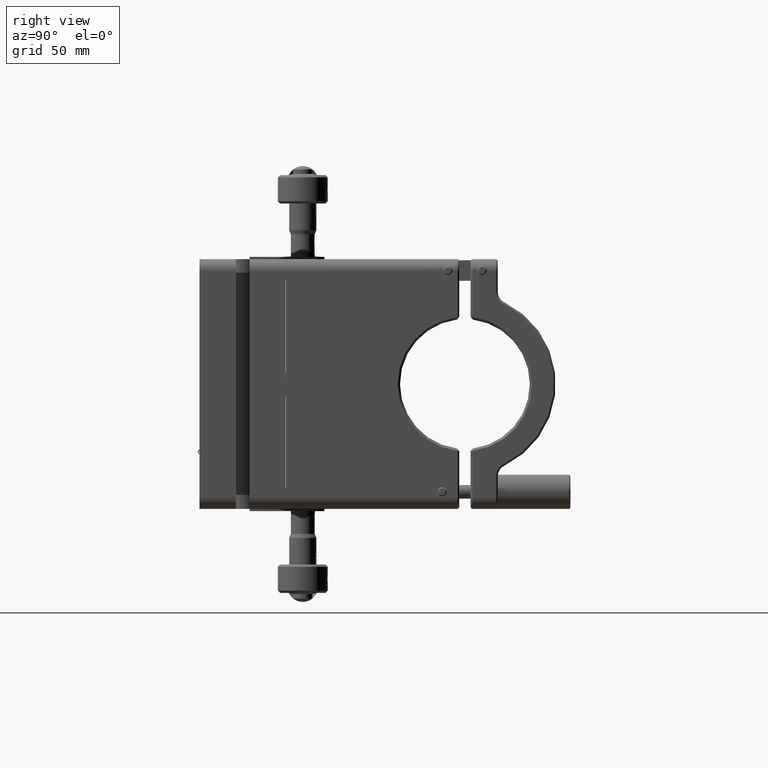
[diagram: clean part render]
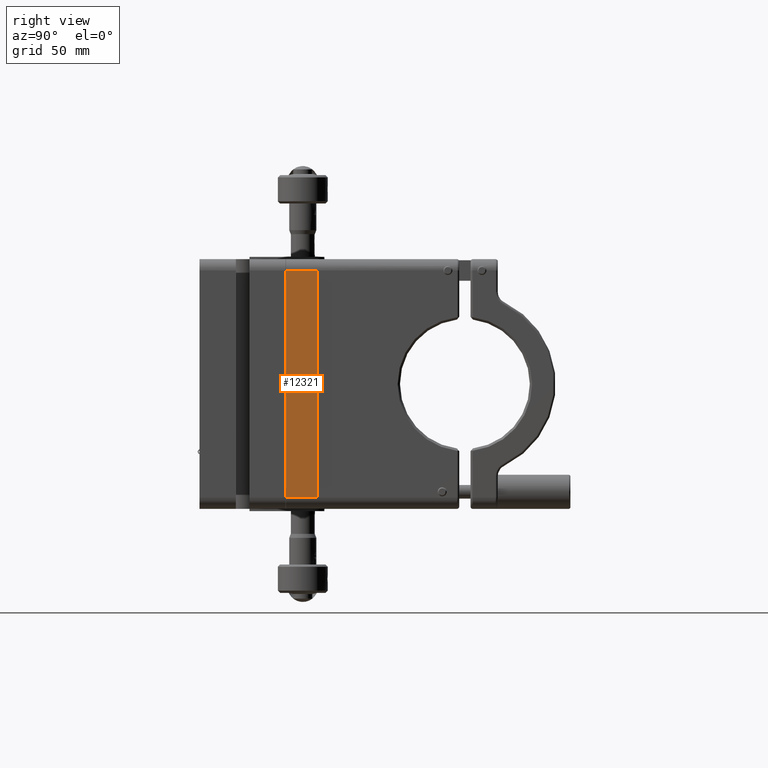
[diagram: same view with one face highlighted and labeled with its STEP entity id]
A machine part, right view. The second image highlights one B-rep face of the part: STEP entity #12321.
In plain terms, the highlighted planar face has unit normal (-1, 0, 0).
Its self-contained STEP definition (entity closure, byte-faithful):
#1980 = DIRECTION ( 'NONE',  ( 0.000000000000000000, 0.000000000000000000, 1.000000000000000000 ) ) ;
#6941 = CARTESIAN_POINT ( 'NONE',  ( 100.0000000000000142, 30.09999999999966036, 55.00000000000000000 ) ) ;
#9917 = LINE ( 'NONE', #23353, #42511 ) ;
#10332 = CARTESIAN_POINT ( 'NONE',  ( 100.0000000000000142, 43.89999999999966462, -50.00000000000000000 ) ) ;
#12236 = VECTOR ( 'NONE', #30512, 1000.000000000000000 ) ;
#12321 = ADVANCED_FACE ( 'NONE', ( #15188 ), #32170, .F. ) ;
#12344 = CARTESIAN_POINT ( 'NONE',  ( 100.0000000000000142, 30.09999999999966036, 50.00000000000000000 ) ) ;
#13023 = ORIENTED_EDGE ( 'NONE', *, *, #41544, .T. ) ;
#13306 = VERTEX_POINT ( 'NONE', #41047 ) ;
#15115 = CARTESIAN_POINT ( 'NONE',  ( 100.0000000000000142, 46.09999999999966036, -50.00000000000000711 ) ) ;
#15188 = FACE_OUTER_BOUND ( 'NONE', #35529, .T. ) ;
#16928 = LINE ( 'NONE', #30380, #32010 ) ;
#18301 = AXIS2_PLACEMENT_3D ( 'NONE', #42264, #39401, #1980 ) ;
#19383 = DIRECTION ( 'NONE',  ( 0.000000000000000000, -1.000000000000000000, 0.000000000000000000 ) ) ;
#23353 = CARTESIAN_POINT ( 'NONE',  ( 100.0000000000000142, 46.09999999999966036, 50.00000000000000000 ) ) ;
#23693 = LINE ( 'NONE', #6941, #12236 ) ;
#24635 = EDGE_CURVE ( 'NONE', #41728, #25745, #35178, .T. ) ;
#25745 = VERTEX_POINT ( 'NONE', #10332 ) ;
#30180 = VERTEX_POINT ( 'NONE', #12344 ) ;
#30380 = CARTESIAN_POINT ( 'NONE',  ( 100.0000000000000142, 43.89999999999966462, -55.00000000000000000 ) ) ;
#30512 = DIRECTION ( 'NONE',  ( 0.000000000000000000, 0.000000000000000000, -1.000000000000000000 ) ) ;
#30826 = DIRECTION ( 'NONE',  ( -0.000000000000000000, -0.000000000000000000, -1.000000000000000000 ) ) ;
#32010 = VECTOR ( 'NONE', #30826, 1000.000000000000000 ) ;
#32150 = CARTESIAN_POINT ( 'NONE',  ( 100.0000000000000142, 30.09999999999966036, -50.00000000000000711 ) ) ;
#32170 = PLANE ( 'NONE',  #18301 ) ;
#34851 = EDGE_CURVE ( 'NONE', #13306, #25745, #16928, .T. ) ;
#35178 = LINE ( 'NONE', #15115, #41580 ) ;
#35195 = ORIENTED_EDGE ( 'NONE', *, *, #40850, .T. ) ;
#35529 = EDGE_LOOP ( 'NONE', ( #35195, #36331, #41303, #13023 ) ) ;
#36331 = ORIENTED_EDGE ( 'NONE', *, *, #24635, .T. ) ;
#38694 = DIRECTION ( 'NONE',  ( -0.000000000000000000, 1.000000000000000000, -0.000000000000000000 ) ) ;
#39401 = DIRECTION ( 'NONE',  ( -1.000000000000000000, 0.000000000000000000, 0.000000000000000000 ) ) ;
#40850 = EDGE_CURVE ( 'NONE', #30180, #41728, #23693, .T. ) ;
#41047 = CARTESIAN_POINT ( 'NONE',  ( 100.0000000000000142, 43.89999999999966462, 50.00000000000000711 ) ) ;
#41303 = ORIENTED_EDGE ( 'NONE', *, *, #34851, .F. ) ;
#41544 = EDGE_CURVE ( 'NONE', #13306, #30180, #9917, .T. ) ;
#41580 = VECTOR ( 'NONE', #38694, 1000.000000000000000 ) ;
#41728 = VERTEX_POINT ( 'NONE', #32150 ) ;
#42264 = CARTESIAN_POINT ( 'NONE',  ( 100.0000000000000142, 46.09999999999966036, 55.00000000000000000 ) ) ;
#42511 = VECTOR ( 'NONE', #19383, 1000.000000000000000 ) ;